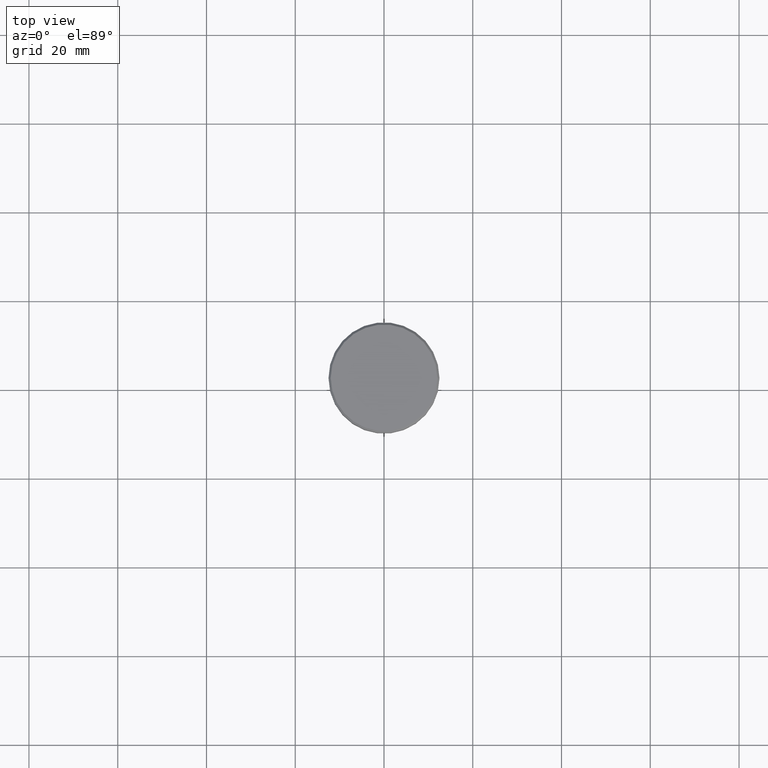
[diagram: clean part render]
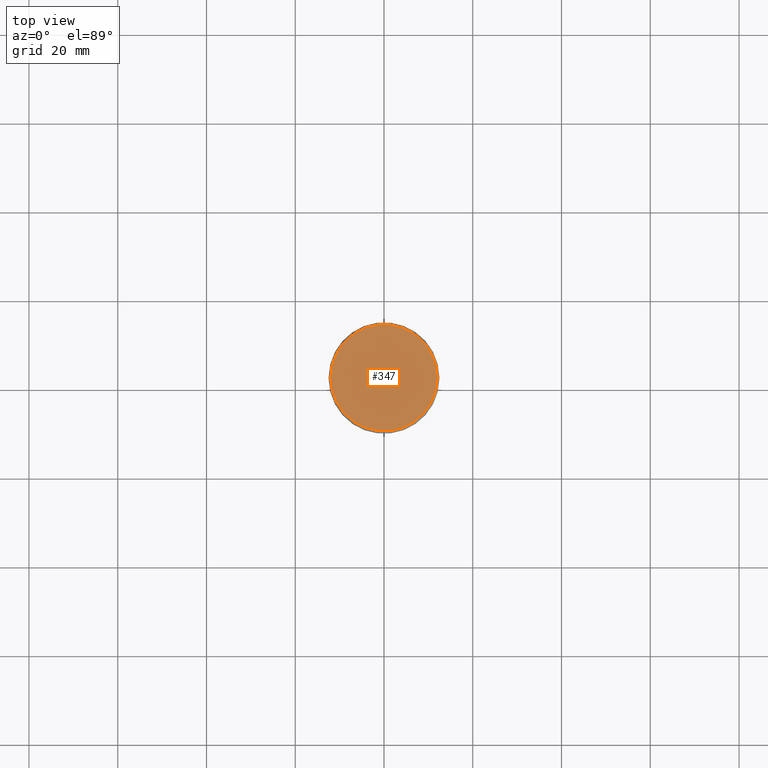
[diagram: same view with one face highlighted and labeled with its STEP entity id]
A machine part, top view. The second image highlights one B-rep face of the part: STEP entity #347.
In plain terms, the highlighted planar face has unit normal (0, -0, 1).
Its self-contained STEP definition (entity closure, byte-faithful):
#121 = DIRECTION ( 'NONE',  ( 0.000000000000000000, -0.000000000000000000, 1.000000000000000000 ) ) ;
#267 = CIRCLE ( 'NONE', #1182, 12.00000000000002487 ) ;
#327 = DIRECTION ( 'NONE',  ( -0.000000000000000000, -0.000000000000000000, 1.000000000000000000 ) ) ;
#347 = ADVANCED_FACE ( 'NONE', ( #678 ), #1115, .T. ) ;
#364 = DIRECTION ( 'NONE',  ( -0.000000000000000000, -0.000000000000000000, 1.000000000000000000 ) ) ;
#381 = AXIS2_PLACEMENT_3D ( 'NONE', #1183, #364, #559 ) ;
#552 = ORIENTED_EDGE ( 'NONE', *, *, #935, .T. ) ;
#559 = DIRECTION ( 'NONE',  ( 1.000000000000000000, 0.000000000000000000, 0.000000000000000000 ) ) ;
#568 = VERTEX_POINT ( 'NONE', #684 ) ;
#580 = EDGE_LOOP ( 'NONE', ( #552, #1146 ) ) ;
#678 = FACE_OUTER_BOUND ( 'NONE', #580, .T. ) ;
#684 = CARTESIAN_POINT ( 'NONE',  ( -12.00000000000002487, 0.000000000000000000, 0.000000000000000000 ) ) ;
#787 = CIRCLE ( 'NONE', #381, 12.00000000000002487 ) ;
#863 = AXIS2_PLACEMENT_3D ( 'NONE', #936, #121, #1045 ) ;
#878 = DIRECTION ( 'NONE',  ( 1.000000000000000000, 0.000000000000000000, 0.000000000000000000 ) ) ;
#900 = CARTESIAN_POINT ( 'NONE',  ( 12.00000000000002487, 1.500192328955509115E-15, 0.000000000000000000 ) ) ;
#935 = EDGE_CURVE ( 'NONE', #568, #1128, #267, .T. ) ;
#936 = CARTESIAN_POINT ( 'NONE',  ( 0.000000000000000000, 0.000000000000000000, 0.000000000000000000 ) ) ;
#1045 = DIRECTION ( 'NONE',  ( 1.000000000000000000, 0.000000000000000000, 0.000000000000000000 ) ) ;
#1115 = PLANE ( 'NONE',  #863 ) ;
#1128 = VERTEX_POINT ( 'NONE', #900 ) ;
#1137 = CARTESIAN_POINT ( 'NONE',  ( 0.000000000000000000, 0.000000000000000000, 0.000000000000000000 ) ) ;
#1146 = ORIENTED_EDGE ( 'NONE', *, *, #1166, .T. ) ;
#1166 = EDGE_CURVE ( 'NONE', #1128, #568, #787, .T. ) ;
#1182 = AXIS2_PLACEMENT_3D ( 'NONE', #1137, #327, #878 ) ;
#1183 = CARTESIAN_POINT ( 'NONE',  ( 0.000000000000000000, 0.000000000000000000, 0.000000000000000000 ) ) ;